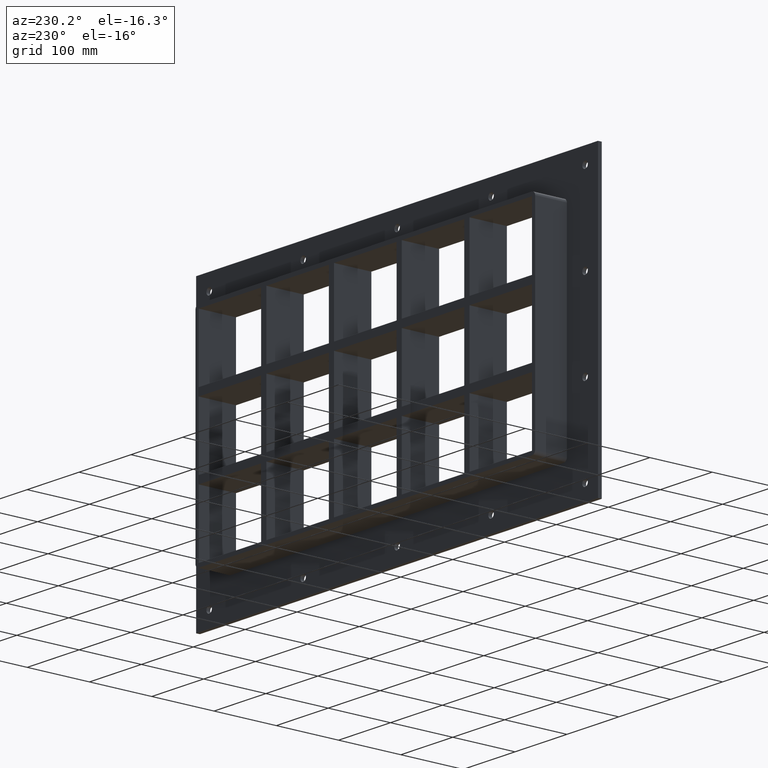
[diagram: clean part render]
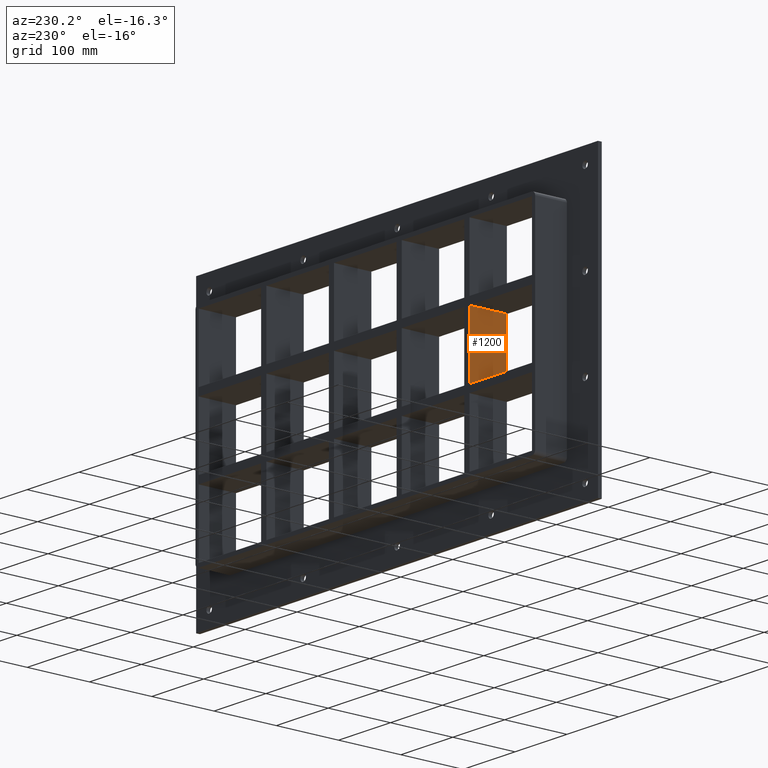
[diagram: same view with one face highlighted and labeled with its STEP entity id]
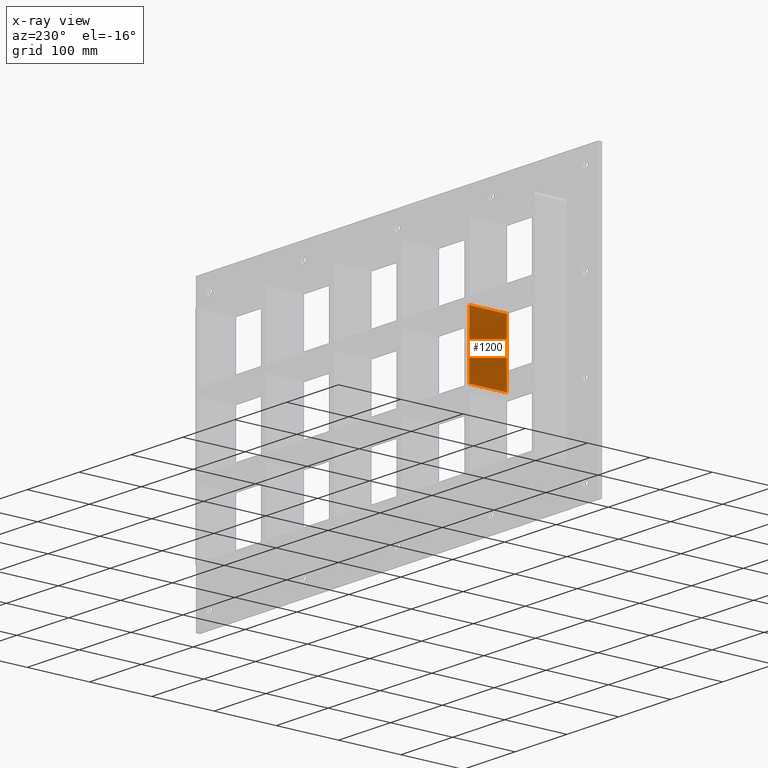
[diagram: x-ray of the same camera — body ghosted, the highlighted face saturated]
A machine part, auxiliary view. The second image highlights one B-rep face of the part: STEP entity #1200.
The next image is the same camera in x-ray: the body ghosted, the highlighted face saturated — about 0% of this face is hidden behind the body in this view.
In plain terms, the highlighted planar face has unit normal (-1, 0, 0).
Its self-contained STEP definition (entity closure, byte-faithful):
#465=CARTESIAN_POINT('',(-200.7500000000021,-3.0,50.499999999989811));
#466=VERTEX_POINT('',#465);
#467=CARTESIAN_POINT('',(-200.7500000000021,57.0,50.499999999989811));
#468=VERTEX_POINT('',#467);
#469=CARTESIAN_POINT('',(-200.7500000000021,-3.0,50.499999999989804));
#470=DIRECTION('',(0.0,1.0,0.0));
#471=VECTOR('',#470,60.0);
#472=LINE('',#469,#471);
#473=EDGE_CURVE('',#466,#468,#472,.T.);
#1170=CARTESIAN_POINT('',(-200.7500000000021,-3.0,-163.50000000000006));
#1171=DIRECTION('',(-1.0,0.0,0.0));
#1172=DIRECTION('',(0.0,0.0,1.0));
#1173=AXIS2_PLACEMENT_3D('',#1170,#1171,#1172);
#1174=PLANE('',#1173);
#1175=ORIENTED_EDGE('',*,*,#473,.T.);
#1176=CARTESIAN_POINT('',(-200.7500000000021,57.0,-50.500000000000114));
#1177=VERTEX_POINT('',#1176);
#1178=CARTESIAN_POINT('',(-200.7500000000021,57.0,-50.500000000000114));
#1179=DIRECTION('',(0.0,0.0,1.0));
#1180=VECTOR('',#1179,100.99999999998991);
#1181=LINE('',#1178,#1180);
#1182=EDGE_CURVE('',#1177,#468,#1181,.T.);
#1183=ORIENTED_EDGE('',*,*,#1182,.F.);
#1184=CARTESIAN_POINT('',(-200.7500000000021,-3.0,-50.500000000000114));
#1185=VERTEX_POINT('',#1184);
#1186=CARTESIAN_POINT('',(-200.7500000000021,57.0,-50.500000000000114));
#1187=DIRECTION('',(0.0,-1.0,0.0));
#1188=VECTOR('',#1187,60.0);
#1189=LINE('',#1186,#1188);
#1190=EDGE_CURVE('',#1177,#1185,#1189,.T.);
#1191=ORIENTED_EDGE('',*,*,#1190,.T.);
#1192=CARTESIAN_POINT('',(-200.7500000000021,-3.0,-50.500000000000114));
#1193=DIRECTION('',(0.0,0.0,1.0));
#1194=VECTOR('',#1193,100.99999999998991);
#1195=LINE('',#1192,#1194);
#1196=EDGE_CURVE('',#1185,#466,#1195,.T.);
#1197=ORIENTED_EDGE('',*,*,#1196,.T.);
#1198=EDGE_LOOP('',(#1175,#1183,#1191,#1197));
#1199=FACE_OUTER_BOUND('',#1198,.T.);
#1200=ADVANCED_FACE('',(#1199),#1174,.T.);